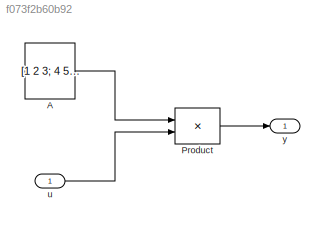
MODEL slx_f073f2b60b92
KIND model
CONFIG AbsTol = auto
CONFIG EnableMultiTasking = off
CONFIG FixedStep = auto
CONFIG MaxStep = auto
CONFIG MinStep = auto
CONFIG RelTol = 1e-3
CONFIG SampleTimeConstraint = Unconstrained
CONFIG SolverName = ode1
CONFIG StartTime = 0.0
CONFIG StopTime = 10.0
BLOCK [Constant] A
  Value = [1 2 3; 4 5 6]
BLOCK [Product] Product
  Multiplication = Matrix(*)
  Ports = [2, 1]
BLOCK [Inport] u
  PortDimensions = [3]
BLOCK [Outport] y
LINE A:1 -> Product:1
LINE Product:1 -> y:1
LINE u:1 -> Product:2
